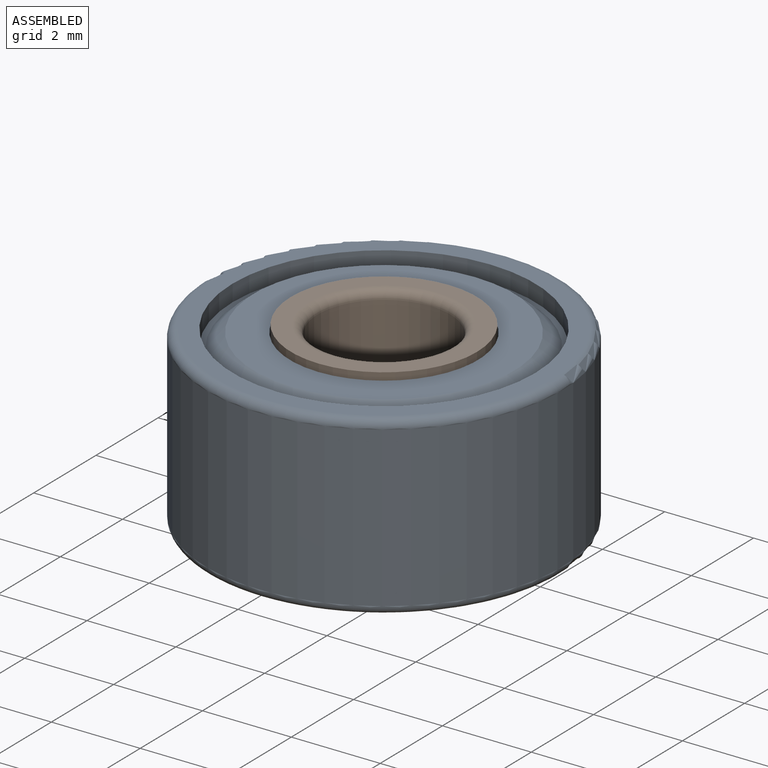
[diagram: assembled view]
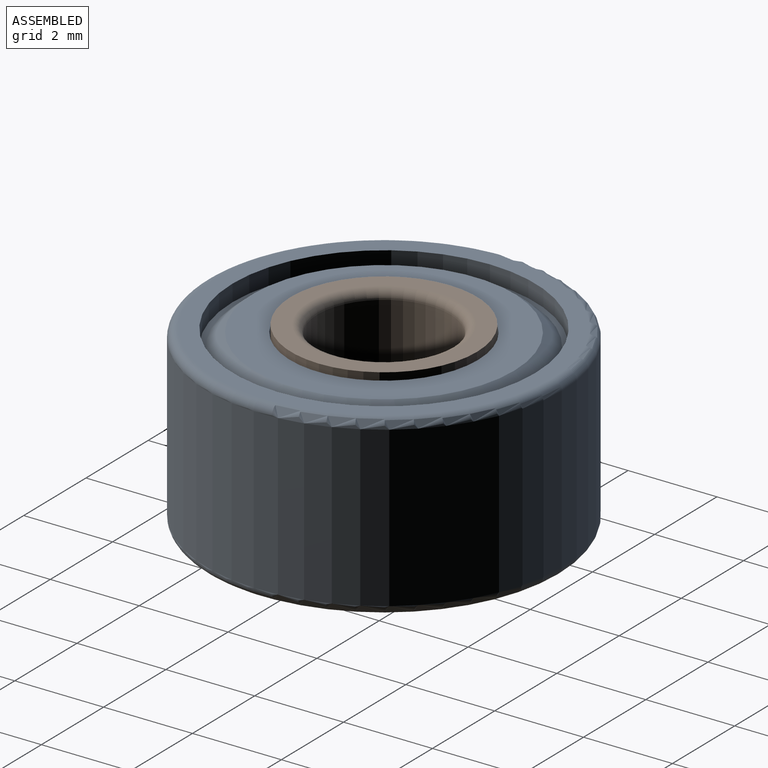
[diagram: assembled view, second angle]
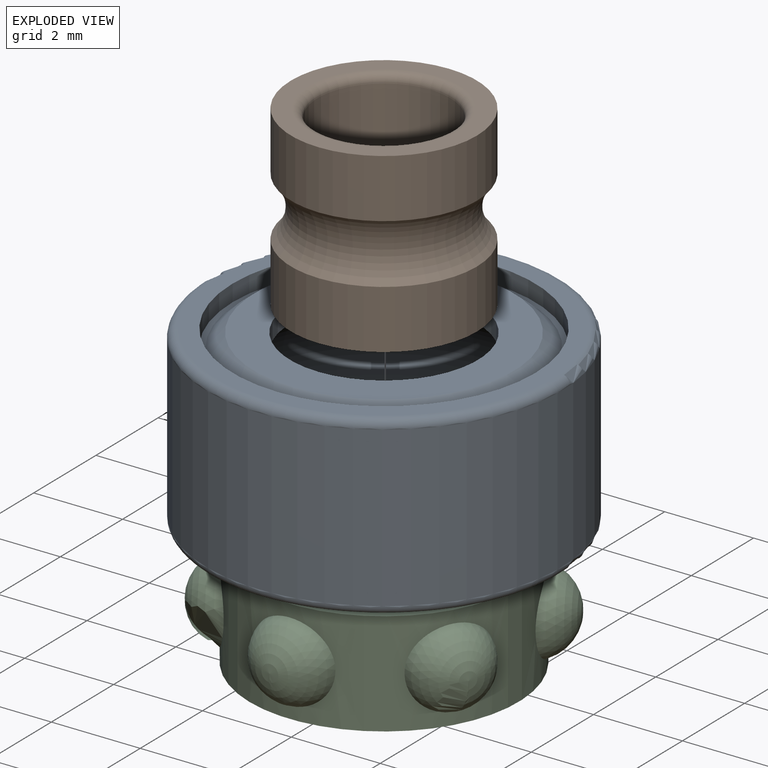
[diagram: exploded view]
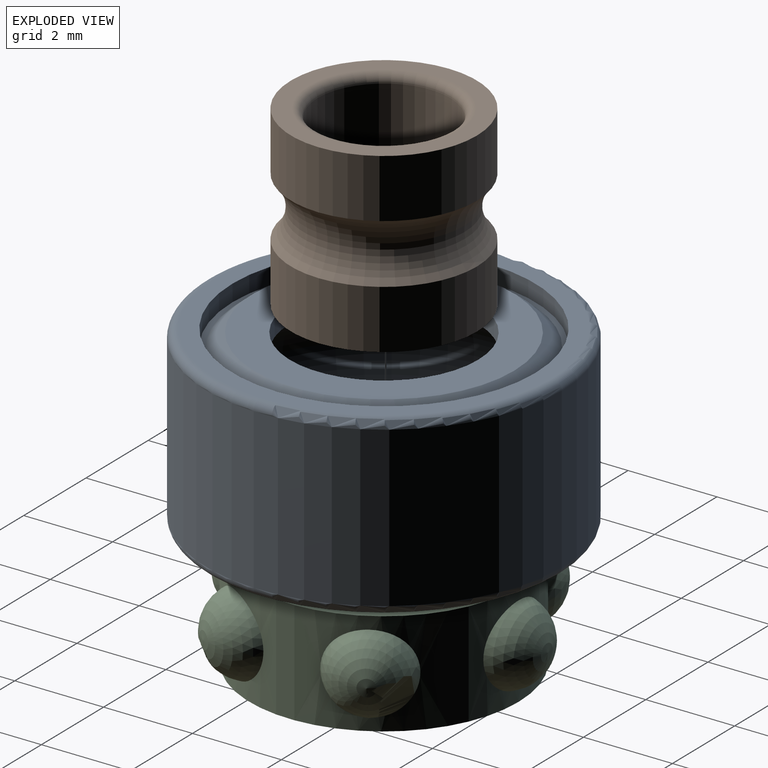
[diagram: exploded view, second angle]
ASSEMBLY  parts=3 mates=2
PART A: 20 faces, bbox 4x8.7x8.7 mm
  f0: plane 6.81x6.81mm, normal (-1,0,0), area 2.5mm2, adj f1,f5
  f1: cone r=3.11mm half-angle=50deg, axis (1,0,0), area 9.1mm2, adj f0,f2
  f2: plane 5.86x5.86mm, normal (-1,0,0), area 13mm2, adj f1,f3
  f3: cylinder r=2.11mm len=4.23mm, axis (1,0,0), area 5.3mm2, adj f2,f4
  f4: plane 6.81x6.81mm, normal (1,0,0), area 22.4mm2, adj f3,f6
  f5: cylinder r=3.41mm len=6.81mm, axis (1,0,0), area 8.1mm2, adj f0,f7
  f6: cylinder r=3.41mm len=6.81mm, axis (1,0,0), area 18.1mm2, adj f4,f19
  f7: plane 7.6x7.6mm, normal (-1,0,0), area 9mm2, adj f5,f8
  f8: torus R=3.8mm, axis (1,0,0), area 7.7mm2, adj f7,f9
  f9: cylinder r=4mm len=8mm, axis (1,0,0), area 90.2mm2, adj f8,f10
  f10: torus R=3.8mm, axis (1,0,0), area 7.7mm2, adj f9,f11
  f11: plane 7.6x7.6mm, normal (1,0,0), area 9mm2, adj f10,f13
  f12: cylinder r=3.41mm len=6.81mm, axis (1,0,0), area 18.1mm2, adj f14,f19
  f13: cylinder r=3.41mm len=6.81mm, axis (1,0,0), area 8.1mm2, adj f11,f18
  f14: plane 6.81x6.81mm, normal (-1,0,0), area 22.4mm2, adj f12,f15
  f15: cylinder r=2.11mm len=4.23mm, axis (1,0,0), area 5.3mm2, adj f14,f16
  f16: plane 5.86x5.86mm, normal (1,0,0), area 13mm2, adj f15,f17
  f17: cone r=3.11mm half-angle=50deg, axis (-1,0,0), area 9.1mm2, adj f16,f18
  f18: plane 6.81x6.81mm, normal (1,0,0), area 2.5mm2, adj f13,f17
  f19: torus R=2.75mm, axis (1,0,0), area 33.6mm2, adj f6,f12
PART B: 8 faces, bbox 4x6x6 mm
  f0: torus R=1.7mm, axis (1,0,0), area 3.1mm2, adj f1,f7
  f1: plane 4.19x4.19mm, normal (-1,0,0), area 4.7mm2, adj f0,f2
  f2: cylinder r=2.09mm len=4.19mm, axis (1,0,0), area 17.4mm2, adj f1,f3
  f3: torus R=2.75mm, axis (1,0,0), area 17.9mm2, adj f2,f4
  f4: cylinder r=2.09mm len=4.19mm, axis (1,0,0), area 17.4mm2, adj f3,f5
  f5: plane 4.19x4.19mm, normal (1,0,0), area 4.7mm2, adj f4,f6
  f6: torus R=1.7mm, axis (1,0,0), area 3.1mm2, adj f5,f7
  f7: cylinder r=1.5mm len=3.59mm, axis (1,0,0), area 33.8mm2, adj f0,f6
PART C: 16 faces, bbox 2.3x7.4x6.6 mm
  f0: cylinder r=3.03mm len=6.06mm, axis (1,0,0), area 28.7mm2, adj f1,f3,f5,f7,f9,f11,f13,f15
  f1: plane 6.06x6.06mm, normal (1,0,0), area 9.7mm2, adj f0,f2
  f2: cylinder r=2.47mm len=4.94mm, axis (1,0,0), area 22mm2, adj f1,f3,f4,f6,f8,f10,f12,f14
  f3: plane 6.06x6.06mm, normal (-1,0,0), area 9.7mm2, adj f0,f2
  f4: sphere r=0.94mm, area 3.4mm2, adj f2
  f5: sphere r=0.94mm, area 4.3mm2, adj f0
  f6: sphere r=0.94mm, area 3.6mm2, adj f2
  f7: sphere r=0.94mm, area 4.1mm2, adj f0
  f8: sphere r=0.94mm, area 3.6mm2, adj f2
  f9: sphere r=0.94mm, area 4.1mm2, adj f0
  f10: sphere r=0.94mm, area 3.6mm2, adj f2
  f11: sphere r=0.94mm, area 4.1mm2, adj f0
  f12: sphere r=0.94mm, area 3.6mm2, adj f2
  f13: sphere r=0.94mm, area 4.1mm2, adj f0
  f14: sphere r=0.94mm, area 3.6mm2, adj f2
  f15: sphere r=0.94mm, area 4.1mm2, adj f0
PLACE A rot(axis=(0,-1,0),90deg) t=(-6.25,3.33,9.34)mm
PLACE B rot(axis=(0,-1,0),90deg) t=(-6.25,3.33,9.42)mm
PLACE C rot(axis=(0,-1,0),90deg) t=(-6.25,3.33,8.71)mm
MATE revolute A.f1 <-> C.f0  axis (0,0,1) through (-6.25,3.33,7.54)mm
MATE revolute B.f0 <-> A.f1  axis (0,0,1) through (-6.25,3.33,7.42)mm
